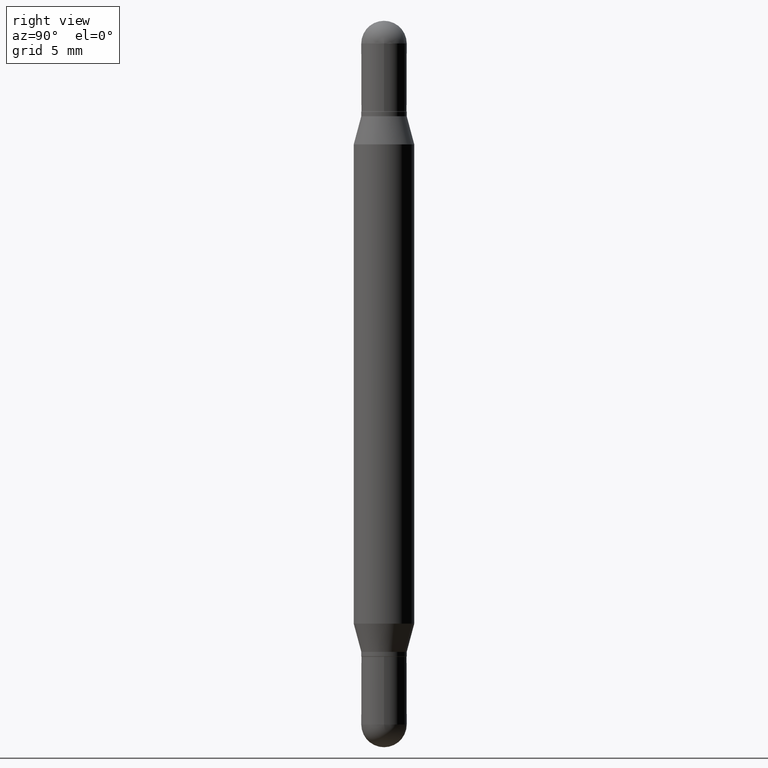
[diagram: clean part render]
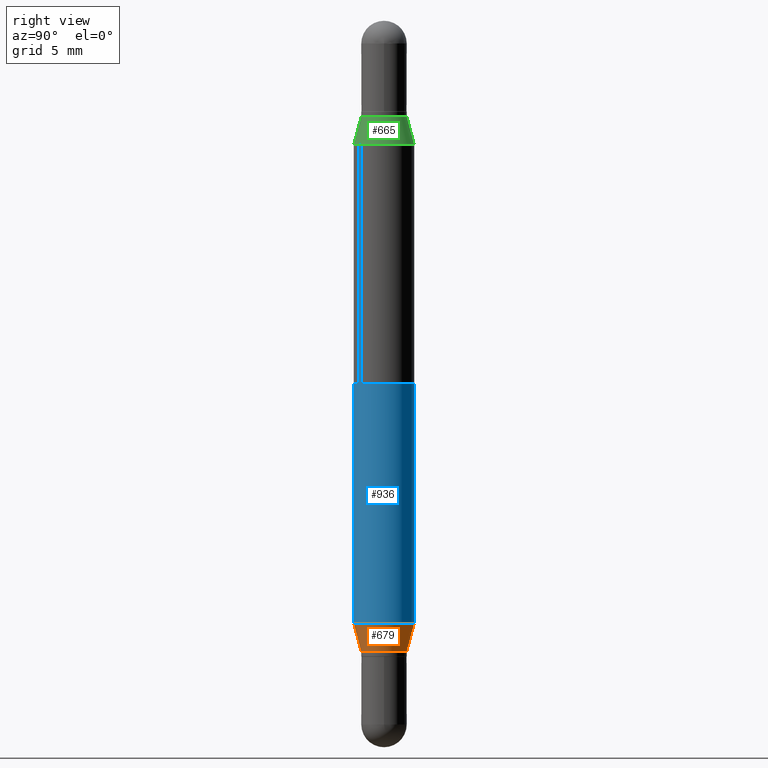
[diagram: same view with three faces highlighted in distinct colors, each labeled with its STEP entity id]
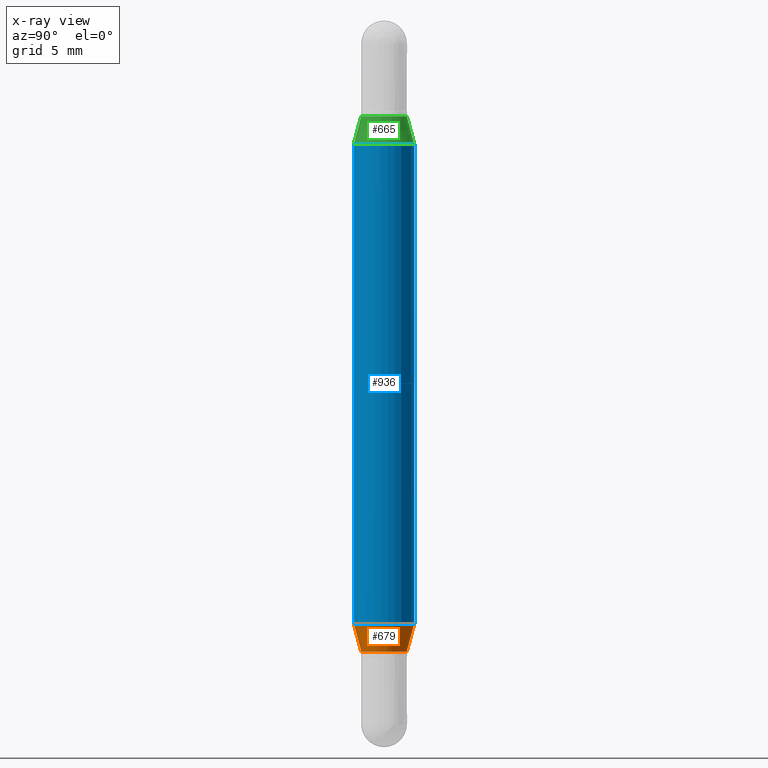
[diagram: x-ray of the same camera — body ghosted, the three highlighted faces saturated]
A machine part, right view with three faces highlighted in distinct colors.
The next image is the same camera in x-ray (body ghosted, the three faces saturated) — at least one of them is partly hidden behind the body in this view.
Their STEP definitions:

[orange] entity #679 — the highlighted conical surface has half-angle 15 deg.
#29 = ORIENTED_EDGE ( 'NONE', *, *, #329, .F. ) ;
#54 = EDGE_CURVE ( 'NONE', #885, #388, #807, .T. ) ;
#184 = DIRECTION ( 'NONE',  ( -1.807323732225336450E-15, -0.2588190451025190741, 0.9659258262890687563 ) ) ;
#189 = VECTOR ( 'NONE', #184, 39.37007874015748143 ) ;
#215 = AXIS2_PLACEMENT_3D ( 'NONE', #1030, #344, #522 ) ;
#218 = CARTESIAN_POINT ( 'NONE',  ( 3.332445430715164513E-16, 0.04689999999999509145, -1.303000000000000602 ) ) ;
#286 = DIRECTION ( 'NONE',  ( -2.445729317596611550E-29, 3.491108271674524864E-15, 1.000000000000000000 ) ) ;
#287 = DIRECTION ( 'NONE',  ( 1.839019923739606626E-15, 0.2588190451025258465, 0.9659258262890669799 ) ) ;
#329 = EDGE_CURVE ( 'NONE', #506, #749, #1065, .T. ) ;
#344 = DIRECTION ( 'NONE',  ( -2.445729317596611550E-29, 3.491108271674524864E-15, 1.000000000000000000 ) ) ;
#346 = EDGE_CURVE ( 'NONE', #885, #506, #631, .T. ) ;
#363 = LINE ( 'NONE', #719, #518 ) ;
#388 = VERTEX_POINT ( 'NONE', #218 ) ;
#410 = CARTESIAN_POINT ( 'NONE',  ( 4.287811248607390144E-16, 0.06249999999999565625, -1.244780007401925070 ) ) ;
#456 = AXIS2_PLACEMENT_3D ( 'NONE', #1038, #954, #512 ) ;
#464 = CARTESIAN_POINT ( 'NONE',  ( -4.364351673553611504E-16, -0.06250000000000434375, -1.244780007401924626 ) ) ;
#506 = VERTEX_POINT ( 'NONE', #464 ) ;
#511 = ORIENTED_EDGE ( 'NONE', *, *, #953, .T. ) ;
#512 = DIRECTION ( 'NONE',  ( -6.982962677686265133E-15, -1.000000000000000000, 5.824835807386533174E-15 ) ) ;
#518 = VECTOR ( 'NONE', #287, 39.37007874015748143 ) ;
#522 = DIRECTION ( 'NONE',  ( -6.982962677686265133E-15, -1.000000000000000000, 5.824835807386533174E-15 ) ) ;
#544 = CARTESIAN_POINT ( 'NONE',  ( -3.275009495834514884E-16, -0.04690000000000419528, -1.302999999999999936 ) ) ;
#622 = AXIS2_PLACEMENT_3D ( 'NONE', #1069, #286, #860 ) ;
#631 = LINE ( 'NONE', #854, #189 ) ;
#679 = ADVANCED_FACE ( 'NONE', ( #787 ), #704, .T. ) ;
#704 = CONICAL_SURFACE ( 'NONE', #215, 0.04689999999999964336, 0.2617993877991511842 ) ;
#719 = CARTESIAN_POINT ( 'NONE',  ( 3.332445430715162048E-16, 0.04689999999999509145, -1.303000000000000602 ) ) ;
#749 = VERTEX_POINT ( 'NONE', #410 ) ;
#787 = FACE_OUTER_BOUND ( 'NONE', #1017, .T. ) ;
#807 = CIRCLE ( 'NONE', #456, 0.04689999999999964336 ) ;
#850 = ORIENTED_EDGE ( 'NONE', *, *, #346, .F. ) ;
#854 = CARTESIAN_POINT ( 'NONE',  ( -3.275009495834514884E-16, -0.04690000000000419528, -1.302999999999999936 ) ) ;
#860 = DIRECTION ( 'NONE',  ( -6.982962677686265922E-15, -1.000000000000000000, 4.370956789862821150E-15 ) ) ;
#885 = VERTEX_POINT ( 'NONE', #544 ) ;
#953 = EDGE_CURVE ( 'NONE', #388, #749, #363, .T. ) ;
#954 = DIRECTION ( 'NONE',  ( -2.445729317596611550E-29, 3.491108271674524864E-15, 1.000000000000000000 ) ) ;
#1017 = EDGE_LOOP ( 'NONE', ( #1060, #511, #29, #850 ) ) ;
#1030 = CARTESIAN_POINT ( 'NONE',  ( 3.186785300828385595E-29, -4.548914077991906494E-15, -1.303000000000000380 ) ) ;
#1038 = CARTESIAN_POINT ( 'NONE',  ( 3.186785300828385595E-29, -4.548914077991906494E-15, -1.303000000000000380 ) ) ;
#1060 = ORIENTED_EDGE ( 'NONE', *, *, #54, .T. ) ;
#1065 = CIRCLE ( 'NONE', #622, 0.06250000000000000000 ) ;
#1069 = CARTESIAN_POINT ( 'NONE',  ( 3.044394958061014750E-29, -4.345661780255935833E-15, -1.244780007401924848 ) ) ;

[blue] entity #936 — the highlighted cylindrical surface (edge-blend (fillet) strip) has radius 1.5875 mm, axis along (-0, -0, -1).
#11 = CARTESIAN_POINT ( 'NONE',  ( -4.364351673553916201E-16, -0.06250000000000521805, -1.500000000000000222 ) ) ;
#40 = VERTEX_POINT ( 'NONE', #414 ) ;
#86 = ORIENTED_EDGE ( 'NONE', *, *, #101, .T. ) ;
#101 = EDGE_CURVE ( 'NONE', #759, #506, #425, .T. ) ;
#155 = CARTESIAN_POINT ( 'NONE',  ( 4.287811248607206733E-16, 0.06249999999999477501, -1.500000000000000666 ) ) ;
#286 = DIRECTION ( 'NONE',  ( -2.445729317596611550E-29, 3.491108271674524864E-15, 1.000000000000000000 ) ) ;
#320 = EDGE_CURVE ( 'NONE', #40, #749, #561, .T. ) ;
#327 = CARTESIAN_POINT ( 'NONE',  ( 3.044394958061014750E-29, -8.965029458523087270E-16, -0.2552199925980755402 ) ) ;
#329 = EDGE_CURVE ( 'NONE', #506, #749, #1065, .T. ) ;
#364 = VECTOR ( 'NONE', #833, 39.37007874015748143 ) ;
#410 = CARTESIAN_POINT ( 'NONE',  ( 4.287811248607390144E-16, 0.06249999999999565625, -1.244780007401925070 ) ) ;
#414 = CARTESIAN_POINT ( 'NONE',  ( 4.287811248607510938E-16, 0.06249999999999910488, -0.2552199925980757067 ) ) ;
#425 = LINE ( 'NONE', #11, #499 ) ;
#428 = DIRECTION ( 'NONE',  ( -2.445729317596611550E-29, -3.479987534146448973E-15, -1.000000000000000000 ) ) ;
#463 = AXIS2_PLACEMENT_3D ( 'NONE', #1063, #825, #637 ) ;
#464 = CARTESIAN_POINT ( 'NONE',  ( -4.364351673553611504E-16, -0.06250000000000434375, -1.244780007401924626 ) ) ;
#488 = CIRCLE ( 'NONE', #962, 0.06250000000000000000 ) ;
#499 = VECTOR ( 'NONE', #428, 39.37007874015748143 ) ;
#506 = VERTEX_POINT ( 'NONE', #464 ) ;
#561 = LINE ( 'NONE', #155, #364 ) ;
#577 = DIRECTION ( 'NONE',  ( -6.982962677686265922E-15, -1.000000000000000000, 3.278217592397115862E-15 ) ) ;
#622 = AXIS2_PLACEMENT_3D ( 'NONE', #1069, #286, #860 ) ;
#637 = DIRECTION ( 'NONE',  ( -6.982962677686265922E-15, -1.000000000000000000, 4.370956789862821150E-15 ) ) ;
#662 = EDGE_LOOP ( 'NONE', ( #945, #735, #86, #790 ) ) ;
#714 = CYLINDRICAL_SURFACE ( 'NONE', #463, 0.06250000000000000000 ) ;
#735 = ORIENTED_EDGE ( 'NONE', *, *, #801, .F. ) ;
#749 = VERTEX_POINT ( 'NONE', #410 ) ;
#750 = CARTESIAN_POINT ( 'NONE',  ( -4.364351673553612490E-16, -0.06250000000000090206, -0.2552199925980753181 ) ) ;
#759 = VERTEX_POINT ( 'NONE', #750 ) ;
#790 = ORIENTED_EDGE ( 'NONE', *, *, #329, .T. ) ;
#801 = EDGE_CURVE ( 'NONE', #759, #40, #488, .T. ) ;
#825 = DIRECTION ( 'NONE',  ( -2.445729317596611550E-29, -3.479987534146448973E-15, -1.000000000000000000 ) ) ;
#833 = DIRECTION ( 'NONE',  ( -2.445729317596611550E-29, -3.479987534146448973E-15, -1.000000000000000000 ) ) ;
#860 = DIRECTION ( 'NONE',  ( -6.982962677686265922E-15, -1.000000000000000000, 4.370956789862821150E-15 ) ) ;
#929 = DIRECTION ( 'NONE',  ( 2.445729317596611550E-29, 3.479987534146448973E-15, 1.000000000000000000 ) ) ;
#936 = ADVANCED_FACE ( 'NONE', ( #1071 ), #714, .T. ) ;
#945 = ORIENTED_EDGE ( 'NONE', *, *, #320, .F. ) ;
#962 = AXIS2_PLACEMENT_3D ( 'NONE', #327, #929, #577 ) ;
#1063 = CARTESIAN_POINT ( 'NONE',  ( 0.000000000000000000, -5.228321854365732350E-15, -1.500000000000000444 ) ) ;
#1065 = CIRCLE ( 'NONE', #622, 0.06250000000000000000 ) ;
#1069 = CARTESIAN_POINT ( 'NONE',  ( 3.044394958061014750E-29, -4.345661780255935833E-15, -1.244780007401924848 ) ) ;
#1071 = FACE_OUTER_BOUND ( 'NONE', #662, .T. ) ;

[green] entity #665 — the highlighted conical surface has half-angle 15 deg.
#61 = VECTOR ( 'NONE', #361, 39.37007874015748143 ) ;
#72 = LINE ( 'NONE', #224, #813 ) ;
#87 = CIRCLE ( 'NONE', #941, 0.06250000000000000000 ) ;
#98 = FACE_OUTER_BOUND ( 'NONE', #920, .T. ) ;
#100 = CARTESIAN_POINT ( 'NONE',  ( 3.044394958061014750E-29, -8.965029458523087270E-16, -0.2552199925980755402 ) ) ;
#105 = CARTESIAN_POINT ( 'NONE',  ( 3.186785300828385595E-29, -6.938980973729069568E-16, -0.1970000000000001195 ) ) ;
#138 = AXIS2_PLACEMENT_3D ( 'NONE', #105, #1036, #1093 ) ;
#224 = CARTESIAN_POINT ( 'NONE',  ( 3.217573560955141730E-16, 0.04689999999999894947, -0.1970000000000002860 ) ) ;
#238 = CONICAL_SURFACE ( 'NONE', #138, 0.04689999999999964336, 0.2617993877991511842 ) ;
#243 = VERTEX_POINT ( 'NONE', #1064 ) ;
#251 = VERTEX_POINT ( 'NONE', #536 ) ;
#292 = DIRECTION ( 'NONE',  ( 2.445729317596611550E-29, 3.479987534146448973E-15, 1.000000000000000000 ) ) ;
#326 = EDGE_CURVE ( 'NONE', #841, #243, #445, .T. ) ;
#339 = EDGE_CURVE ( 'NONE', #243, #498, #87, .T. ) ;
#361 = DIRECTION ( 'NONE',  ( -1.807323732225336450E-15, -0.2588190451025258465, -0.9659258262890669799 ) ) ;
#438 = CARTESIAN_POINT ( 'NONE',  ( -3.275009495834514884E-16, -0.04690000000000033031, -0.1969999999999999529 ) ) ;
#445 = LINE ( 'NONE', #690, #61 ) ;
#498 = VERTEX_POINT ( 'NONE', #922 ) ;
#536 = CARTESIAN_POINT ( 'NONE',  ( 3.217573560955143209E-16, 0.04689999999999894947, -0.1970000000000002860 ) ) ;
#594 = DIRECTION ( 'NONE',  ( 2.445729317596611550E-29, 3.479987534146448973E-15, 1.000000000000000000 ) ) ;
#665 = ADVANCED_FACE ( 'NONE', ( #98 ), #238, .T. ) ;
#690 = CARTESIAN_POINT ( 'NONE',  ( -3.275009495834514884E-16, -0.04690000000000033031, -0.1969999999999999529 ) ) ;
#691 = CIRCLE ( 'NONE', #1052, 0.04689999999999964336 ) ;
#695 = ORIENTED_EDGE ( 'NONE', *, *, #339, .T. ) ;
#721 = ORIENTED_EDGE ( 'NONE', *, *, #326, .T. ) ;
#739 = DIRECTION ( 'NONE',  ( -6.982962677686265133E-15, -1.000000000000000000, 3.640522379616583431E-15 ) ) ;
#813 = VECTOR ( 'NONE', #817, 39.37007874015748143 ) ;
#817 = DIRECTION ( 'NONE',  ( 1.775627540710971216E-15, 0.2588190451025190741, -0.9659258262890687563 ) ) ;
#841 = VERTEX_POINT ( 'NONE', #438 ) ;
#920 = EDGE_LOOP ( 'NONE', ( #982, #1024, #721, #695 ) ) ;
#922 = CARTESIAN_POINT ( 'NONE',  ( 4.287811248607510938E-16, 0.06249999999999910488, -0.2552199925980757067 ) ) ;
#941 = AXIS2_PLACEMENT_3D ( 'NONE', #100, #594, #948 ) ;
#948 = DIRECTION ( 'NONE',  ( -6.982962677686265922E-15, -1.000000000000000000, 3.278217592397115862E-15 ) ) ;
#967 = EDGE_CURVE ( 'NONE', #841, #251, #691, .T. ) ;
#974 = CARTESIAN_POINT ( 'NONE',  ( 3.186785300828385595E-29, -6.938980973729069568E-16, -0.1970000000000001195 ) ) ;
#982 = ORIENTED_EDGE ( 'NONE', *, *, #1006, .F. ) ;
#1006 = EDGE_CURVE ( 'NONE', #251, #498, #72, .T. ) ;
#1024 = ORIENTED_EDGE ( 'NONE', *, *, #967, .F. ) ;
#1036 = DIRECTION ( 'NONE',  ( -2.445729317596611550E-29, -3.479987534146448973E-15, -1.000000000000000000 ) ) ;
#1052 = AXIS2_PLACEMENT_3D ( 'NONE', #974, #292, #739 ) ;
#1064 = CARTESIAN_POINT ( 'NONE',  ( -4.364351673553612490E-16, -0.06250000000000090206, -0.2552199925980753181 ) ) ;
#1093 = DIRECTION ( 'NONE',  ( -6.982962677686265133E-15, -1.000000000000000000, 3.640522379616583431E-15 ) ) ;